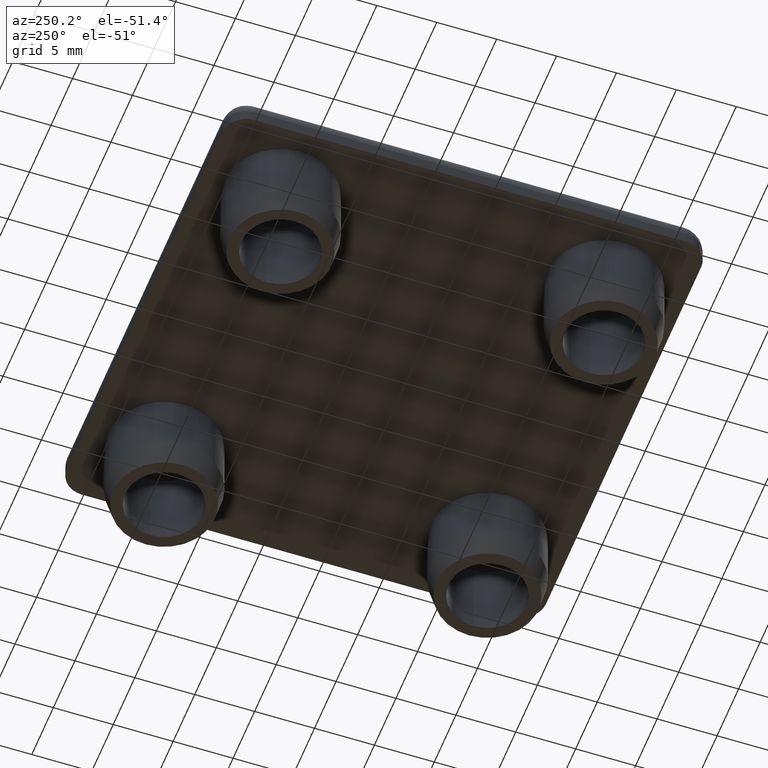
[diagram: clean part render]
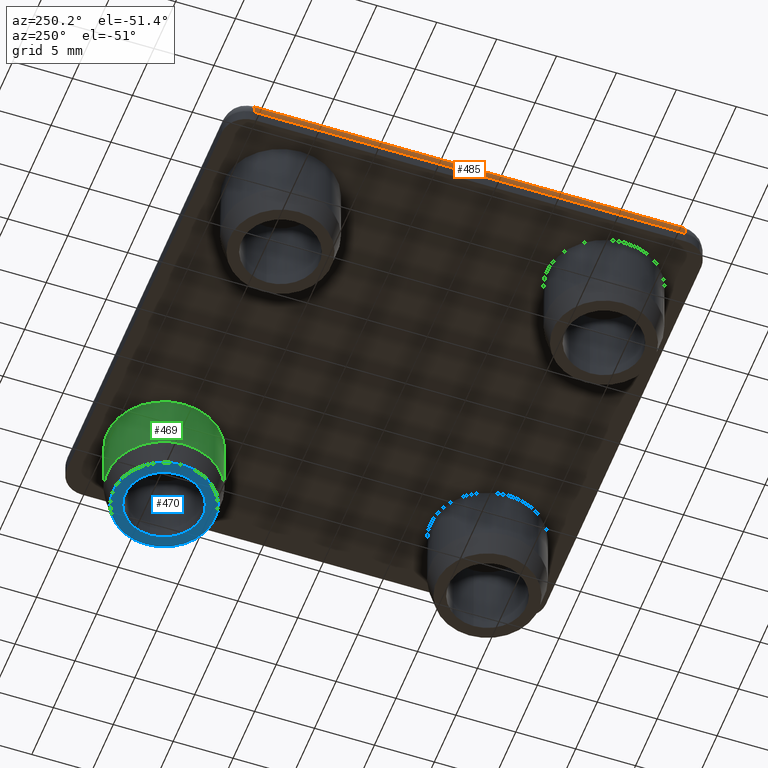
[diagram: same view with three faces highlighted in distinct colors, each labeled with its STEP entity id]
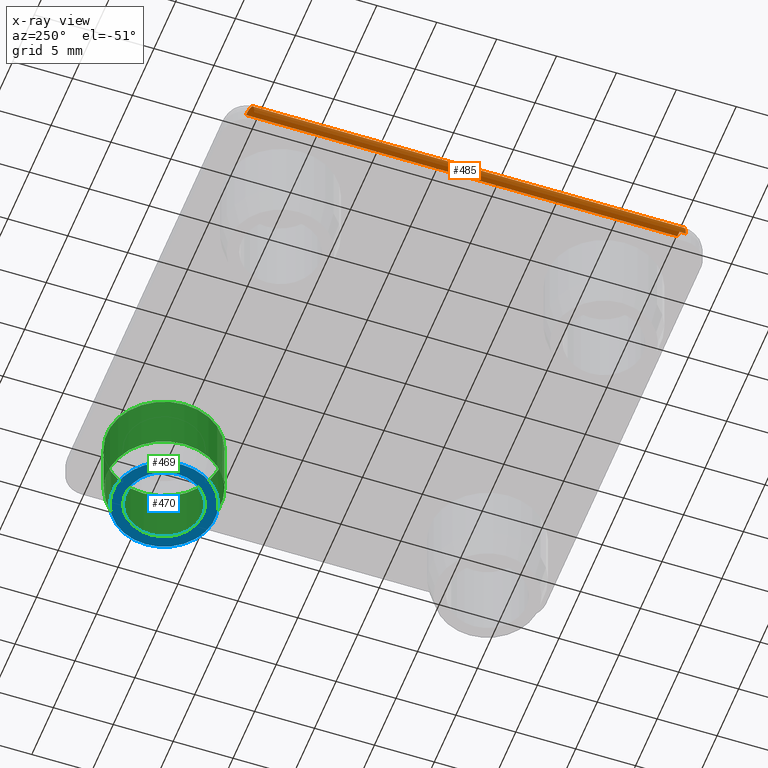
[diagram: x-ray of the same camera — body ghosted, the three highlighted faces saturated]
A machine part, auxiliary view with three faces highlighted in distinct colors.
The next image is the same camera in x-ray (body ghosted, the three faces saturated) — at least one of them is partly hidden behind the body in this view.
Their STEP definitions:

[orange] entity #485 — the highlighted cylindrical surface (edge-blend (fillet) strip) has radius 2 mm, axis along (0, -1, 0).
#21=LINE('',#808,#41);
#38=LINE('',#866,#58);
#41=VECTOR('',#657,36.);
#58=VECTOR('',#726,36.);
#88=CYLINDRICAL_SURFACE('',#561,2.);
#141=FACE_OUTER_BOUND('',#199,.T.);
#199=EDGE_LOOP('',(#428,#429,#430,#431));
#234=CIRCLE('',#547,2.);
#238=CIRCLE('',#556,2.);
#261=VERTEX_POINT('',#798);
#265=VERTEX_POINT('',#807);
#276=VERTEX_POINT('',#837);
#279=VERTEX_POINT('',#855);
#305=EDGE_CURVE('',#265,#261,#21,.T.);
#321=EDGE_CURVE('',#261,#276,#234,.F.);
#330=EDGE_CURVE('',#279,#265,#238,.F.);
#336=EDGE_CURVE('',#276,#279,#38,.T.);
#428=ORIENTED_EDGE('',*,*,#330,.T.);
#429=ORIENTED_EDGE('',*,*,#305,.T.);
#430=ORIENTED_EDGE('',*,*,#321,.T.);
#431=ORIENTED_EDGE('',*,*,#336,.T.);
#485=ADVANCED_FACE('',(#141),#88,.T.);
#547=AXIS2_PLACEMENT_3D('',#839,#688,#689);
#556=AXIS2_PLACEMENT_3D('',#856,#711,#712);
#561=AXIS2_PLACEMENT_3D('',#865,#724,#725);
#657=DIRECTION('',(0.,1.,0.));
#688=DIRECTION('center_axis',(0.,1.,0.));
#689=DIRECTION('ref_axis',(0.,0.,1.));
#711=DIRECTION('center_axis',(0.,-1.,0.));
#712=DIRECTION('ref_axis',(-1.,0.,0.));
#724=DIRECTION('center_axis',(0.,-1.,0.));
#725=DIRECTION('ref_axis',(-0.707106781186547,0.,0.707106781186548));
#726=DIRECTION('',(0.,-1.,0.));
#798=CARTESIAN_POINT('',(-18.,18.,3.));
#807=CARTESIAN_POINT('',(-18.,-18.,3.));
#808=CARTESIAN_POINT('',(-18.,9.99999999999999,3.));
#837=CARTESIAN_POINT('',(-20.,18.,1.));
#839=CARTESIAN_POINT('Origin',(-18.,18.,1.));
#855=CARTESIAN_POINT('',(-20.,-18.,1.));
#856=CARTESIAN_POINT('Origin',(-18.,-18.,1.));
#865=CARTESIAN_POINT('Origin',(-18.,9.99999999999999,1.));
#866=CARTESIAN_POINT('',(-20.,9.99999999999999,1.));

[blue] entity #470 — the highlighted planar face has unit normal (0, 0, 1).
#65=PLANE('',#528);
#103=FACE_BOUND('',#179,.T.);
#126=FACE_OUTER_BOUND('',#178,.T.);
#178=EDGE_LOOP('',(#368));
#179=EDGE_LOOP('',(#369));
#221=CIRCLE('',#525,4.25);
#223=CIRCLE('',#529,3.25);
#257=VERTEX_POINT('',#786);
#259=VERTEX_POINT('',#792);
#297=EDGE_CURVE('',#257,#257,#221,.T.);
#299=EDGE_CURVE('',#259,#259,#223,.T.);
#368=ORIENTED_EDGE('',*,*,#297,.F.);
#369=ORIENTED_EDGE('',*,*,#299,.T.);
#470=ADVANCED_FACE('',(#126,#103),#65,.F.);
#525=AXIS2_PLACEMENT_3D('',#787,#633,#634);
#528=AXIS2_PLACEMENT_3D('',#791,#639,#640);
#529=AXIS2_PLACEMENT_3D('',#793,#641,#642);
#633=DIRECTION('center_axis',(0.,0.,1.));
#634=DIRECTION('ref_axis',(-1.,0.,0.));
#639=DIRECTION('center_axis',(0.,0.,1.));
#640=DIRECTION('ref_axis',(1.,0.,0.));
#641=DIRECTION('center_axis',(0.,0.,1.));
#642=DIRECTION('ref_axis',(-1.,0.,0.));
#786=CARTESIAN_POINT('',(17.75,13.5,-7.));
#787=CARTESIAN_POINT('Origin',(13.5,13.5,-7.));
#791=CARTESIAN_POINT('Origin',(13.5,13.5,-7.));
#792=CARTESIAN_POINT('',(16.75,13.5,-7.));
#793=CARTESIAN_POINT('Origin',(13.5,13.5,-7.));

[green] entity #469 — the highlighted cylindrical surface (bore or boss wall) has radius 4.75 mm, axis along (0, 0, 1).
#79=CYLINDRICAL_SURFACE('',#526,4.75);
#102=FACE_BOUND('',#177,.T.);
#125=FACE_OUTER_BOUND('',#176,.T.);
#176=EDGE_LOOP('',(#366));
#177=EDGE_LOOP('',(#367));
#220=CIRCLE('',#524,4.75);
#222=CIRCLE('',#527,4.75);
#256=VERTEX_POINT('',#784);
#258=VERTEX_POINT('',#789);
#296=EDGE_CURVE('',#256,#256,#220,.T.);
#298=EDGE_CURVE('',#258,#258,#222,.T.);
#366=ORIENTED_EDGE('',*,*,#298,.F.);
#367=ORIENTED_EDGE('',*,*,#296,.F.);
#469=ADVANCED_FACE('',(#125,#102),#79,.T.);
#524=AXIS2_PLACEMENT_3D('',#785,#631,#632);
#526=AXIS2_PLACEMENT_3D('',#788,#635,#636);
#527=AXIS2_PLACEMENT_3D('',#790,#637,#638);
#631=DIRECTION('center_axis',(0.,0.,-1.));
#632=DIRECTION('ref_axis',(-1.,0.,0.));
#635=DIRECTION('center_axis',(0.,0.,1.));
#636=DIRECTION('ref_axis',(-1.,0.,0.));
#637=DIRECTION('center_axis',(0.,0.,1.));
#638=DIRECTION('ref_axis',(-1.,0.,0.));
#784=CARTESIAN_POINT('',(18.25,13.5,-5.));
#785=CARTESIAN_POINT('Origin',(13.5,13.5,-5.));
#788=CARTESIAN_POINT('Origin',(13.5,13.5,-7.));
#789=CARTESIAN_POINT('',(18.25,13.5,0.));
#790=CARTESIAN_POINT('Origin',(13.5,13.5,0.));